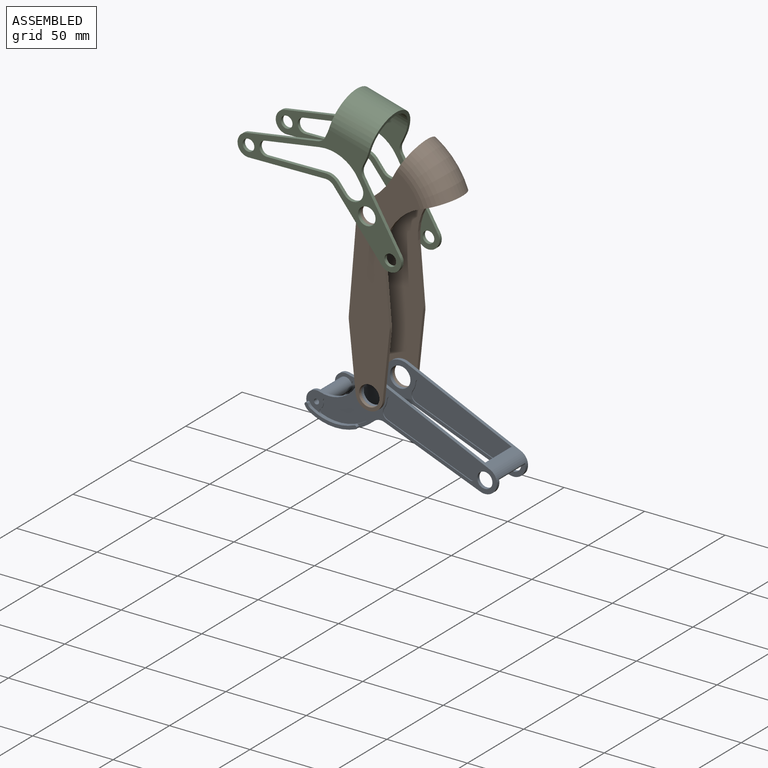
[diagram: assembled view]
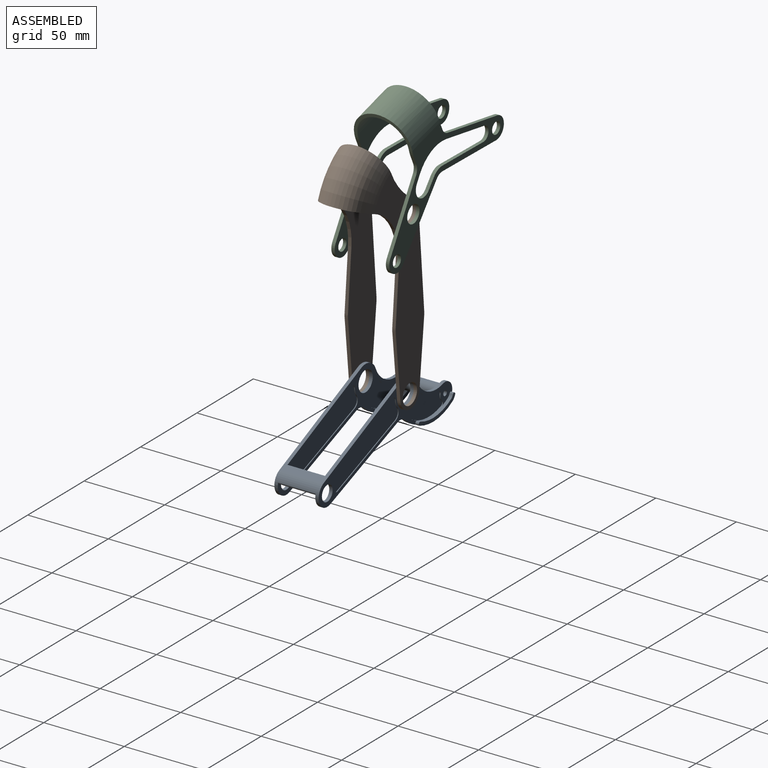
[diagram: assembled view, second angle]
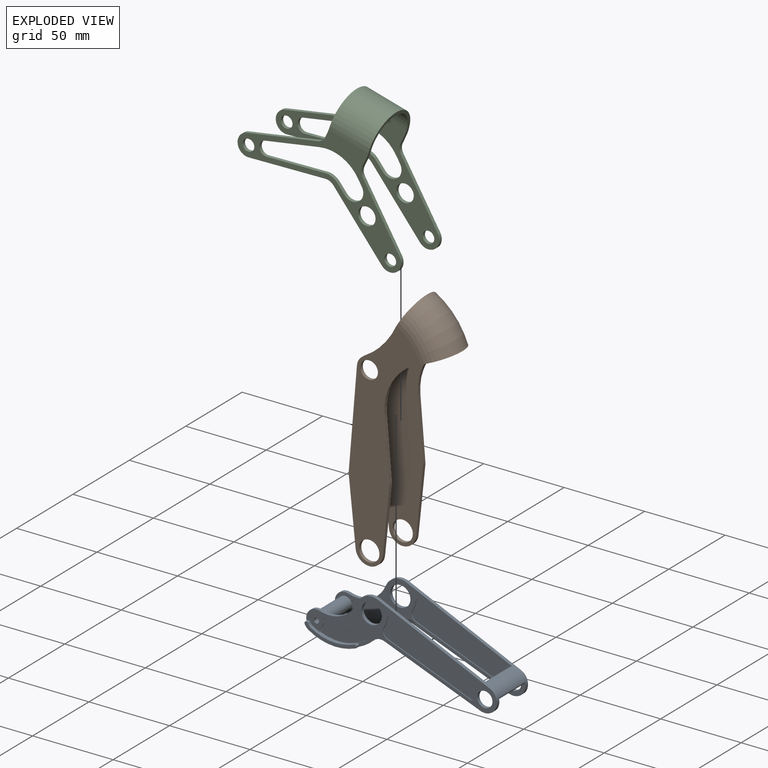
[diagram: exploded view]
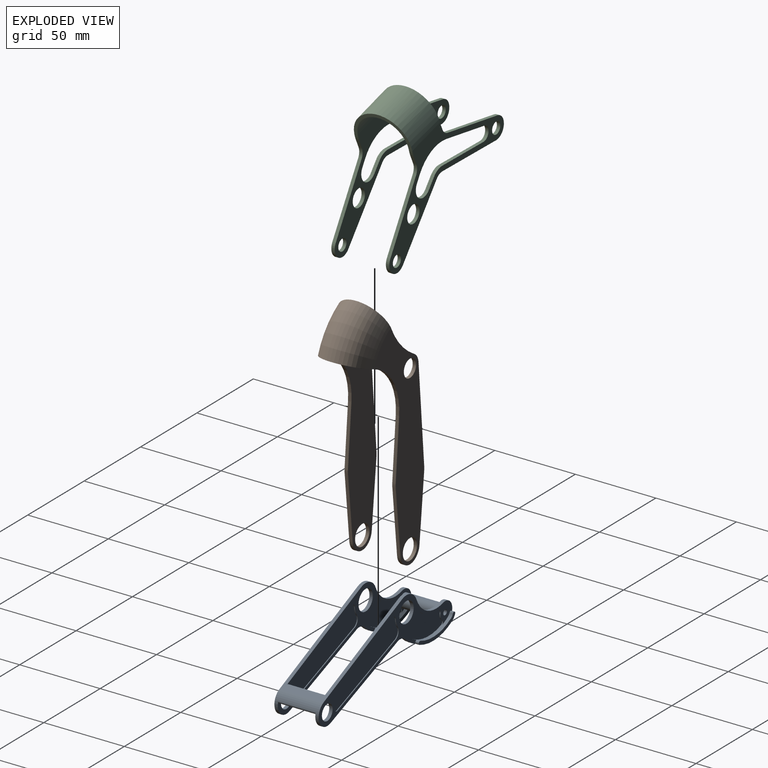
[diagram: exploded view, second angle]
ASSEMBLY  parts=3 mates=2
PART A: 114 faces, bbox 116.7x31.8x41.6 mm
  f0: plane 116.66x39.41mm, normal (0,1,0), area 679.2mm2, adj f2,f3,f4,f5,f6,f7,f8,f9
  f1: plane 5.74x2.41mm, normal (0,1,0), area 3.1mm2, adj f10,f11,f17
  f2: plane 56.71x1.49mm, normal (-0.03,0,-1), area 30mm2, adj f0,f5,f6,f56
  f3: plane 55.28x1.45mm, normal (-0.03,0,1), area 29.3mm2, adj f0,f8,f9,f56
  f4: cylinder r=9.53mm len=5.02mm, axis (0,1,0), area 2.7mm2, adj f0,f5,f9,f56
  f5: cylinder r=3.17mm len=4.18mm, axis (0,1,0), area 3.2mm2, adj f0,f2,f4,f56
  f6: cylinder r=1.59mm len=2.36mm, axis (0,1,0), area 1.7mm2, adj f0,f2,f7,f56
  f7: cylinder r=6.88mm len=6.68mm, axis (0,1,0), area 3.7mm2, adj f0,f6,f8,f56
  f8: cylinder r=1.59mm len=2.36mm, axis (0,1,0), area 1.7mm2, adj f0,f3,f7,f56
  f9: cylinder r=4.23mm len=5.13mm, axis (0,1,0), area 4.1mm2, adj f0,f3,f4,f56
  f10: cylinder r=1.59mm len=2.4mm, axis (0,1,0), area 1.8mm2, adj f1,f11,f17,f54
  f11: cylinder r=4.23mm len=24.34mm, axis (0,1,0), area 613.5mm2, adj f0,f1,f10,f12,f17,f46,f52,f54
  f12: cylinder r=1.59mm len=2.49mm, axis (0,1,0), area 1.6mm2, adj f0,f11,f13,f54
  f13: cylinder r=21.17mm len=12.71mm, axis (0,1,0), area 9.1mm2, adj f0,f12,f14,f54
  f14: cylinder r=3.17mm len=4.55mm, axis (0,1,0), area 2.8mm2, adj f0,f13,f15,f54
  f15: cylinder r=9.53mm len=4.65mm, axis (0,1,0), area 2.6mm2, adj f0,f14,f16,f54
  f16: cylinder r=4.23mm len=6.5mm, axis (0,1,0), area 4.7mm2, adj f0,f15,f17,f54
  f17: cylinder r=29.88mm len=30.09mm, axis (0,1,0), area 75.4mm2, adj f0,f1,f10,f11,f16,f50,f52,f54
  f18: cylinder r=9.53mm len=5.02mm, axis (0,1,0), area 2.7mm2, adj f19,f41,f45,f55
  f19: cylinder r=3.17mm len=4.18mm, axis (0,1,0), area 3.2mm2, adj f18,f20,f45,f55
  f20: plane 56.71x1.49mm, normal (-0.03,0,-1), area 30mm2, adj f19,f21,f45,f55
  f21: cylinder r=1.59mm len=2.36mm, axis (0,1,0), area 1.7mm2, adj f20,f22,f45,f55
  f22: cylinder r=6.88mm len=6.68mm, axis (0,1,0), area 3.7mm2, adj f21,f23,f45,f55
  f23: cylinder r=1.59mm len=2.36mm, axis (0,1,0), area 1.7mm2, adj f22,f24,f45,f55
  f24: plane 55.28x1.45mm, normal (-0.03,0,1), area 29.3mm2, adj f23,f41,f45,f55
  f25: cylinder r=1.59mm len=2.4mm, axis (0,1,0), area 1.8mm2, adj f26,f32,f45,f53
  f26: cylinder r=4.23mm len=4.77mm, axis (0,1,0), area 2.7mm2, adj f25,f27,f45,f53
  f27: cylinder r=1.59mm len=2.49mm, axis (0,1,0), area 1.6mm2, adj f26,f28,f45,f53
  f28: cylinder r=21.17mm len=12.71mm, axis (0,1,0), area 9.1mm2, adj f27,f29,f45,f53
  f29: cylinder r=3.17mm len=4.55mm, axis (0,1,0), area 2.8mm2, adj f28,f30,f45,f53
  f30: cylinder r=9.53mm len=4.65mm, axis (0,1,0), area 2.6mm2, adj f29,f31,f45,f53
  f31: cylinder r=4.23mm len=6.5mm, axis (0,1,0), area 4.7mm2, adj f30,f32,f45,f53
  f32: cylinder r=29.88mm len=30.09mm, axis (0,1,0), area 75.4mm2, adj f25,f31,f45,f47,f48,f51,f53
  f33: cylinder r=32mm len=34.42mm, axis (0,1,0), area 217.5mm2, adj f0,f34,f43,f45,f47,f50,f51,f52
  f34: cylinder r=6.35mm len=5.63mm, axis (0,1,0), area 15.1mm2, adj f0,f33,f35,f45
  f35: plane 63.87x2.12mm, normal (0.03,0,-1), area 135.2mm2, adj f0,f34,f36,f45
  f36: cylinder r=7.62mm len=27.52mm, axis (0,1,0), area 249.8mm2, adj f0,f35,f37,f45,f60,f61,f95,f102
  f37: plane 76.15x27.52mm, normal (0.03,0,1), area 416.1mm2, adj f0,f36,f38,f45,f57,f61,f96,f102
  f38: cylinder r=9.61mm len=9.87mm, axis (0,1,0), area 32.5mm2, adj f0,f37,f39,f45
  f39: cylinder r=19.05mm len=18.98mm, axis (0,1,0), area 59.9mm2, adj f0,f38,f43,f45
  f40: cylinder r=6.35mm len=12.7mm, axis (0,1,0), area 84.5mm2, adj f0,f45
  f41: cylinder r=4.23mm len=5.13mm, axis (0,1,0), area 4.1mm2, adj f18,f24,f45,f55
  f42: cylinder r=4.76mm len=9.53mm, axis (0,1,0), area 63.3mm2, adj f0,f45
  f43: cylinder r=6.35mm len=12.59mm, axis (0,1,0), area 55.6mm2, adj f0,f33,f39,f45,f46,f49,f51,f52
  f44: cylinder r=1.59mm len=27.52mm, axis (0,1,0), area 274.5mm2, adj f45,f102
  f45: plane 116.66x39.5mm, normal (0,-1,0), area 754.5mm2, adj f18,f19,f20,f21,f22,f23,f24,f25
  f46: cylinder r=1.06mm len=2.12mm, axis (0,1,0), area 7mm2, adj f0,f11,f43,f52
  f47: cylinder r=1.06mm len=2.12mm, axis (0,1,0), area 7mm2, adj f32,f33,f45,f51
  f48: cylinder r=4.23mm len=2.31mm, axis (0,1,0), area 5.6mm2, adj f32,f45,f49,f51
  f49: cylinder r=1.06mm len=2.12mm, axis (0,1,0), area 7mm2, adj f43,f45,f48,f51
  f50: cylinder r=1.06mm len=2.12mm, axis (0,1,0), area 7mm2, adj f0,f17,f33,f52
  f51: plane 31.91x11.18mm, normal (0,-1,0), area 72.6mm2, adj f32,f33,f43,f47,f48,f49
  f52: plane 31.91x11.18mm, normal (0,1,0), area 72.6mm2, adj f11,f17,f33,f43,f46,f50
  f53: plane 27.06x22.32mm, normal (0,-1,0), area 339.3mm2, adj f25,f26,f27,f28,f29,f30,f31,f32
  f54: plane 27.06x22.32mm, normal (0,1,0), area 339.3mm2, adj f10,f11,f12,f13,f14,f15,f16,f17
  f55: plane 61.51x14.33mm, normal (0,-1,0), area 777.8mm2, adj f18,f19,f20,f21,f22,f23,f24,f41
  f56: plane 61.51x14.33mm, normal (0,1,0), area 777.8mm2, adj f2,f3,f4,f5,f6,f7,f8,f9
  f57: cylinder r=1.06mm len=23.28mm, axis (0,-1,0), area 77.4mm2, adj f0,f37,f58,f61
  f58: plane 23.28x4.02mm, normal (-0.03,0,-1), area 93.6mm2, adj f0,f57,f59,f61
  f59: cylinder r=5.5mm len=23.28mm, axis (0,-1,0), area 108.5mm2, adj f0,f58,f60,f61
  f60: cylinder r=1.06mm len=23.28mm, axis (0,-1,0), area 77.4mm2, adj f0,f36,f59,f61
  f61: plane 116.66x39.41mm, normal (0,-1,0), area 679.2mm2, adj f11,f36,f37,f57,f58,f59,f60,f63
  f62: plane 5.74x2.41mm, normal (0,-1,0), area 3.1mm2, adj f11,f71,f77
  f63: plane 56.71x1.49mm, normal (-0.03,0,-1), area 30mm2, adj f61,f66,f67,f113
  f64: plane 55.28x1.45mm, normal (-0.03,0,1), area 29.3mm2, adj f61,f69,f70,f113
  f65: cylinder r=9.53mm len=5.02mm, axis (0,-1,0), area 2.7mm2, adj f61,f66,f70,f113
  f66: cylinder r=3.17mm len=4.18mm, axis (0,-1,0), area 3.2mm2, adj f61,f63,f65,f113
  f67: cylinder r=1.59mm len=2.36mm, axis (0,-1,0), area 1.7mm2, adj f61,f63,f68,f113
  f68: cylinder r=6.88mm len=6.68mm, axis (0,-1,0), area 3.7mm2, adj f61,f67,f69,f113
  f69: cylinder r=1.59mm len=2.36mm, axis (0,-1,0), area 1.7mm2, adj f61,f64,f68,f113
  f70: cylinder r=4.23mm len=5.13mm, axis (0,-1,0), area 4.1mm2, adj f61,f64,f65,f113
  f71: cylinder r=1.59mm len=2.4mm, axis (0,-1,0), area 1.8mm2, adj f11,f62,f77,f111
  f72: cylinder r=1.59mm len=2.49mm, axis (0,-1,0), area 1.6mm2, adj f11,f61,f73,f111
  f73: cylinder r=21.17mm len=12.71mm, axis (0,-1,0), area 9.1mm2, adj f61,f72,f74,f111
  f74: cylinder r=3.17mm len=4.55mm, axis (0,-1,0), area 2.8mm2, adj f61,f73,f75,f111
  f75: cylinder r=9.53mm len=4.65mm, axis (0,-1,0), area 2.6mm2, adj f61,f74,f76,f111
  f76: cylinder r=4.23mm len=6.5mm, axis (0,-1,0), area 4.7mm2, adj f61,f75,f77,f111
  f77: cylinder r=29.88mm len=30.09mm, axis (0,-1,0), area 75.4mm2, adj f11,f61,f62,f71,f76,f107,f109,f111
  f78: cylinder r=9.53mm len=5.02mm, axis (0,-1,0), area 2.7mm2, adj f79,f99,f102,f112
  f79: cylinder r=3.17mm len=4.18mm, axis (0,-1,0), area 3.2mm2, adj f78,f80,f102,f112
  f80: plane 56.71x1.49mm, normal (-0.03,0,-1), area 30mm2, adj f79,f81,f102,f112
  f81: cylinder r=1.59mm len=2.36mm, axis (0,-1,0), area 1.7mm2, adj f80,f82,f102,f112
  f82: cylinder r=6.88mm len=6.68mm, axis (0,-1,0), area 3.7mm2, adj f81,f83,f102,f112
  f83: cylinder r=1.59mm len=2.36mm, axis (0,-1,0), area 1.7mm2, adj f82,f84,f102,f112
  f84: plane 55.28x1.45mm, normal (-0.03,0,1), area 29.3mm2, adj f83,f99,f102,f112
  f85: cylinder r=1.59mm len=2.4mm, axis (0,-1,0), area 1.8mm2, adj f86,f92,f102,f110
  f86: cylinder r=4.23mm len=4.77mm, axis (0,-1,0), area 2.7mm2, adj f85,f87,f102,f110
  f87: cylinder r=1.59mm len=2.49mm, axis (0,-1,0), area 1.6mm2, adj f86,f88,f102,f110
  f88: cylinder r=21.17mm len=12.71mm, axis (0,-1,0), area 9.1mm2, adj f87,f89,f102,f110
  f89: cylinder r=3.17mm len=4.55mm, axis (0,-1,0), area 2.8mm2, adj f88,f90,f102,f110
  f90: cylinder r=9.53mm len=4.65mm, axis (0,-1,0), area 2.6mm2, adj f89,f91,f102,f110
  f91: cylinder r=4.23mm len=6.5mm, axis (0,-1,0), area 4.7mm2, adj f90,f92,f102,f110
  f92: cylinder r=29.88mm len=30.09mm, axis (0,-1,0), area 75.4mm2, adj f85,f91,f102,f104,f105,f108,f110
  f93: cylinder r=32mm len=34.42mm, axis (0,-1,0), area 217.5mm2, adj f61,f94,f101,f102,f104,f107,f108,f109
  f94: cylinder r=6.35mm len=5.63mm, axis (0,-1,0), area 15.1mm2, adj f61,f93,f95,f102
  f95: plane 63.87x2.12mm, normal (0.03,0,-1), area 135.2mm2, adj f36,f61,f94,f102
  f96: cylinder r=9.61mm len=9.87mm, axis (0,-1,0), area 32.5mm2, adj f37,f61,f97,f102
  f97: cylinder r=19.05mm len=18.98mm, axis (0,-1,0), area 59.9mm2, adj f61,f96,f101,f102
  f98: cylinder r=6.35mm len=12.7mm, axis (0,-1,0), area 84.5mm2, adj f61,f102
  f99: cylinder r=4.23mm len=5.13mm, axis (0,-1,0), area 4.1mm2, adj f78,f84,f102,f112
  f100: cylinder r=4.76mm len=9.53mm, axis (0,-1,0), area 63.3mm2, adj f61,f102
  f101: cylinder r=6.35mm len=12.59mm, axis (0,-1,0), area 55.6mm2, adj f61,f93,f97,f102,f103,f106,f108,f109
  f102: plane 116.66x39.5mm, normal (0,1,0), area 754.5mm2, adj f36,f37,f44,f78,f79,f80,f81,f82
  f103: cylinder r=1.06mm len=2.12mm, axis (0,-1,0), area 7mm2, adj f11,f61,f101,f109
  f104: cylinder r=1.06mm len=2.12mm, axis (0,-1,0), area 7mm2, adj f92,f93,f102,f108
  f105: cylinder r=4.23mm len=2.31mm, axis (0,-1,0), area 5.6mm2, adj f92,f102,f106,f108
  f106: cylinder r=1.06mm len=2.12mm, axis (0,-1,0), area 7mm2, adj f101,f102,f105,f108
  f107: cylinder r=1.06mm len=2.12mm, axis (0,-1,0), area 7mm2, adj f61,f77,f93,f109
  f108: plane 31.91x11.18mm, normal (0,1,0), area 72.6mm2, adj f92,f93,f101,f104,f105,f106
  f109: plane 31.91x11.18mm, normal (0,-1,0), area 72.6mm2, adj f11,f77,f93,f101,f103,f107
  f110: plane 27.06x22.32mm, normal (0,1,0), area 339.3mm2, adj f85,f86,f87,f88,f89,f90,f91,f92
  f111: plane 27.06x22.32mm, normal (0,-1,0), area 339.3mm2, adj f11,f71,f72,f73,f74,f75,f76,f77
  f112: plane 61.51x14.33mm, normal (0,1,0), area 777.8mm2, adj f78,f79,f80,f81,f82,f83,f84,f99
  f113: plane 61.51x14.33mm, normal (0,-1,0), area 777.8mm2, adj f63,f64,f65,f66,f67,f68,f69,f70
PART B: 32 faces, bbox 63.3x31.8x156.7 mm
  f0: plane 40.2x4.21mm, normal (-0.99,0,-0.1), area 85.6mm2, adj f1,f9,f12,f13
  f1: cylinder r=8.47mm len=16.84mm, axis (0,-1,0), area 52.6mm2, adj f0,f2,f12,f13
  f2: plane 40.2x4.21mm, normal (0.99,0,-0.1), area 85.6mm2, adj f1,f3,f12,f13
  f3: cylinder r=12.7mm len=2.38mm, axis (0,-1,0), area 5mm2, adj f2,f4,f12,f13
  f4: plane 36.81x3.08mm, normal (1,0,0.08), area 78.2mm2, adj f3,f5,f12,f13
  f5: cylinder r=33.87mm len=34.68mm, axis (0,-1,0), area 93.7mm2, adj f4,f12,f13,f16
  f6: cylinder r=50.8mm len=22.73mm, axis (0,-1,0), area 66.2mm2, adj f7,f12,f13,f17
  f7: cylinder r=7.62mm len=5.97mm, axis (0,-1,0), area 15.5mm2, adj f6,f8,f12,f13
  f8: plane 60.54x5.06mm, normal (-1,0,0.08), area 128.6mm2, adj f7,f9,f12,f13
  f9: cylinder r=12.7mm len=2.38mm, axis (0,-1,0), area 5mm2, adj f0,f8,f12,f13
  f10: cylinder r=6.35mm len=12.7mm, axis (0,-1,0), area 84.5mm2, adj f12,f13
  f11: cylinder r=5.44mm len=10.89mm, axis (0,-1,0), area 72.4mm2, adj f12,f13
  f12: plane 139.4x44.52mm, normal (0,-1,0), area 2632.5mm2, adj f0,f1,f2,f3,f4,f5,f6,f7
  f13: plane 139.4x44.52mm, normal (0,1,0), area 2632.5mm2, adj f0,f1,f2,f3,f4,f5,f6,f7
  f14: torus R=33.87mm, axis (0,-1,0), area 1286.2mm2, adj f13,f16,f17,f31
  f15: torus R=33.87mm, axis (0,-1,0), area 1531mm2, adj f12,f16,f17,f30
  f16: plane 31.75x14.92mm, normal (0.34,0,-0.94), area 98.5mm2, adj f5,f14,f15,f23
  f17: plane 31.75x13.75mm, normal (-0.87,0,0.5), area 98.5mm2, adj f6,f14,f15,f24
  f18: plane 40.2x4.21mm, normal (-0.99,0,-0.1), area 85.6mm2, adj f19,f27,f30,f31
  f19: cylinder r=8.47mm len=16.84mm, axis (0,1,0), area 52.6mm2, adj f18,f20,f30,f31
  f20: plane 40.2x4.21mm, normal (0.99,0,-0.1), area 85.6mm2, adj f19,f21,f30,f31
  f21: cylinder r=12.7mm len=2.38mm, axis (0,1,0), area 5mm2, adj f20,f22,f30,f31
  f22: plane 36.81x3.08mm, normal (1,0,0.08), area 78.2mm2, adj f21,f23,f30,f31
  f23: cylinder r=33.87mm len=34.68mm, axis (0,1,0), area 93.7mm2, adj f16,f22,f30,f31
  f24: cylinder r=50.8mm len=22.73mm, axis (0,1,0), area 66.2mm2, adj f17,f25,f30,f31
  f25: cylinder r=7.62mm len=5.97mm, axis (0,1,0), area 15.5mm2, adj f24,f26,f30,f31
  f26: plane 60.54x5.06mm, normal (-1,0,0.08), area 128.6mm2, adj f25,f27,f30,f31
  f27: cylinder r=12.7mm len=2.38mm, axis (0,1,0), area 5mm2, adj f18,f26,f30,f31
  f28: cylinder r=6.35mm len=12.7mm, axis (0,1,0), area 84.5mm2, adj f30,f31
  f29: cylinder r=5.44mm len=10.89mm, axis (0,1,0), area 72.4mm2, adj f30,f31
  f30: plane 139.4x44.52mm, normal (0,1,0), area 2632.5mm2, adj f15,f18,f19,f20,f21,f22,f23,f24
  f31: plane 139.4x44.52mm, normal (0,-1,0), area 2632.5mm2, adj f14,f18,f19,f20,f21,f22,f23,f24
PART C: 56 faces, bbox 110.7x36x70 mm
  f0: cylinder r=6.52mm len=11.93mm, axis (0,1,0), area 41.4mm2, adj f1,f18,f23,f24
  f1: plane 6.44x3.13mm, normal (0.44,0,0.9), area 15.2mm2, adj f0,f2,f23,f24
  f2: cylinder r=9.53mm len=8.32mm, axis (0,1,0), area 18.2mm2, adj f1,f3,f23,f24
  f3: plane 32.74x15.9mm, normal (-0.44,0,0.9), area 77mm2, adj f2,f4,f23,f24
  f4: cylinder r=4.43mm len=8.1mm, axis (0,1,0), area 28.1mm2, adj f3,f5,f23,f24
  f5: plane 28.19x19.08mm, normal (0.56,0,-0.83), area 72mm2, adj f4,f6,f23,f24
  f6: cylinder r=23.43mm len=26.27mm, axis (0,1,0), area 59mm2, adj f5,f18,f23,f24
  f7: plane 3.24x2.12mm, normal (-1,0,0), area 6.8mm2, adj f8,f23,f24,f29
  f8: cylinder r=6.35mm len=5.26mm, axis (0,1,0), area 13.1mm2, adj f7,f9,f23,f24
  f9: plane 36.89x24.97mm, normal (-0.56,0,0.83), area 94.3mm2, adj f8,f10,f23,f24
  f10: cylinder r=6.8mm len=12.44mm, axis (0,1,0), area 43.2mm2, adj f9,f11,f23,f24
  f11: plane 42.82x20.8mm, normal (0.44,0,-0.9), area 100.8mm2, adj f10,f12,f23,f24
  f12: cylinder r=6.35mm len=5.55mm, axis (0,1,0), area 12.2mm2, adj f11,f13,f23,f24
  f13: plane 42.82x20.8mm, normal (-0.44,0,-0.9), area 100.8mm2, adj f12,f14,f23,f24
  f14: cylinder r=6.8mm len=12.44mm, axis (0,1,0), area 43.2mm2, adj f13,f15,f23,f24
  f15: plane 36.89x24.97mm, normal (0.56,0,0.83), area 94.3mm2, adj f14,f16,f23,f24
  f16: cylinder r=6.35mm len=5.26mm, axis (0,1,0), area 13.1mm2, adj f15,f17,f23,f24
  f17: plane 5.37x2.12mm, normal (1,0,0), area 11.4mm2, adj f16,f19,f23,f24
  f18: plane 3.98x2.69mm, normal (-0.56,0,-0.83), area 10.2mm2, adj f0,f6,f23,f24
  f19: cylinder r=25.4mm len=4.23mm, axis (0,1,0), area 9mm2, adj f17,f23,f24,f28
  f20: cylinder r=5.44mm len=10.89mm, axis (0,1,0), area 72.4mm2, adj f23,f24
  f21: cylinder r=3.63mm len=7.26mm, axis (0,1,0), area 48.3mm2, adj f23,f24
  f22: cylinder r=3.63mm len=7.26mm, axis (0,1,0), area 48.3mm2, adj f23,f24
  f23: plane 110.74x52.27mm, normal (0,-1,0), area 1305.7mm2, adj f0,f1,f2,f3,f4,f5,f6,f7
  f24: plane 110.74x52.27mm, normal (0,1,0), area 1305.7mm2, adj f0,f1,f2,f3,f4,f5,f6,f7
  f25: cylinder r=15.88mm len=31.75mm, axis (0.99,0,0.17), area 1266.9mm2, adj f24,f26,f28,f29,f54,f55
  f26: plane 35.73x15.64mm, normal (-0.99,0,-0.17), area 103.6mm2, adj f25,f27,f29,f55
  f27: cylinder r=17.99mm len=35.98mm, axis (0.99,0,0.17), area 1435.8mm2, adj f23,f26,f28,f29,f53,f55
  f28: plane 35.98x17.74mm, normal (0.99,0,0.17), area 112.6mm2, adj f19,f25,f27,f49
  f29: cylinder r=25.4mm len=4.23mm, axis (0,-1,0), area 9mm2, adj f7,f23,f24,f25,f26,f27
  f30: cylinder r=6.52mm len=11.93mm, axis (0,-1,0), area 41.4mm2, adj f31,f48,f53,f54
  f31: plane 6.44x3.13mm, normal (0.44,0,0.9), area 15.2mm2, adj f30,f32,f53,f54
  f32: cylinder r=9.53mm len=8.32mm, axis (0,-1,0), area 18.2mm2, adj f31,f33,f53,f54
  f33: plane 32.74x15.9mm, normal (-0.44,0,0.9), area 77mm2, adj f32,f34,f53,f54
  f34: cylinder r=4.43mm len=8.1mm, axis (0,-1,0), area 28.1mm2, adj f33,f35,f53,f54
  f35: plane 28.19x19.08mm, normal (0.56,0,-0.83), area 72mm2, adj f34,f36,f53,f54
  f36: cylinder r=23.43mm len=26.27mm, axis (0,-1,0), area 59mm2, adj f35,f48,f53,f54
  f37: plane 3.24x2.12mm, normal (-1,0,0), area 6.8mm2, adj f38,f53,f54,f55
  f38: cylinder r=6.35mm len=5.26mm, axis (0,-1,0), area 13.1mm2, adj f37,f39,f53,f54
  f39: plane 36.89x24.97mm, normal (-0.56,0,0.83), area 94.3mm2, adj f38,f40,f53,f54
  f40: cylinder r=6.8mm len=12.44mm, axis (0,-1,0), area 43.2mm2, adj f39,f41,f53,f54
  f41: plane 42.82x20.8mm, normal (0.44,0,-0.9), area 100.8mm2, adj f40,f42,f53,f54
  f42: cylinder r=6.35mm len=5.55mm, axis (0,-1,0), area 12.2mm2, adj f41,f43,f53,f54
  f43: plane 42.82x20.8mm, normal (-0.44,0,-0.9), area 100.8mm2, adj f42,f44,f53,f54
  f44: cylinder r=6.8mm len=12.44mm, axis (0,-1,0), area 43.2mm2, adj f43,f45,f53,f54
  f45: plane 36.89x24.97mm, normal (0.56,0,0.83), area 94.3mm2, adj f44,f46,f53,f54
  f46: cylinder r=6.35mm len=5.26mm, axis (0,-1,0), area 13.1mm2, adj f45,f47,f53,f54
  f47: plane 5.37x2.12mm, normal (1,0,0), area 11.4mm2, adj f46,f49,f53,f54
  f48: plane 3.98x2.69mm, normal (-0.56,0,-0.83), area 10.2mm2, adj f30,f36,f53,f54
  f49: cylinder r=25.4mm len=4.23mm, axis (0,-1,0), area 9mm2, adj f28,f47,f53,f54
  f50: cylinder r=5.44mm len=10.89mm, axis (0,-1,0), area 72.4mm2, adj f53,f54
  f51: cylinder r=3.63mm len=7.26mm, axis (0,-1,0), area 48.3mm2, adj f53,f54
  f52: cylinder r=3.63mm len=7.26mm, axis (0,-1,0), area 48.3mm2, adj f53,f54
  f53: plane 110.74x52.27mm, normal (0,1,0), area 1305.7mm2, adj f27,f30,f31,f32,f33,f34,f35,f36
  f54: plane 110.74x52.27mm, normal (0,-1,0), area 1305.7mm2, adj f25,f30,f31,f32,f33,f34,f35,f36
  f55: cylinder r=25.4mm len=4.23mm, axis (0,1,0), area 9mm2, adj f25,f26,f27,f37,f53,f54
PLACE A rot(axis=(0,1,0),22.7deg) t=(7.09,-1.23,37.91)mm
PLACE B t=(7.09,-3.34,37.91)mm
PLACE C rot(axis=(0,1,0),25deg) t=(-10.5,-5.46,164.64)mm
MATE revolute C.f50 <-> B.f11  axis (0,1,0) through (7.09,-4.4,139.51)mm
MATE revolute A.f40 <-> B.f28  axis (0,1,0) through (7.09,25.23,37.91)mm
